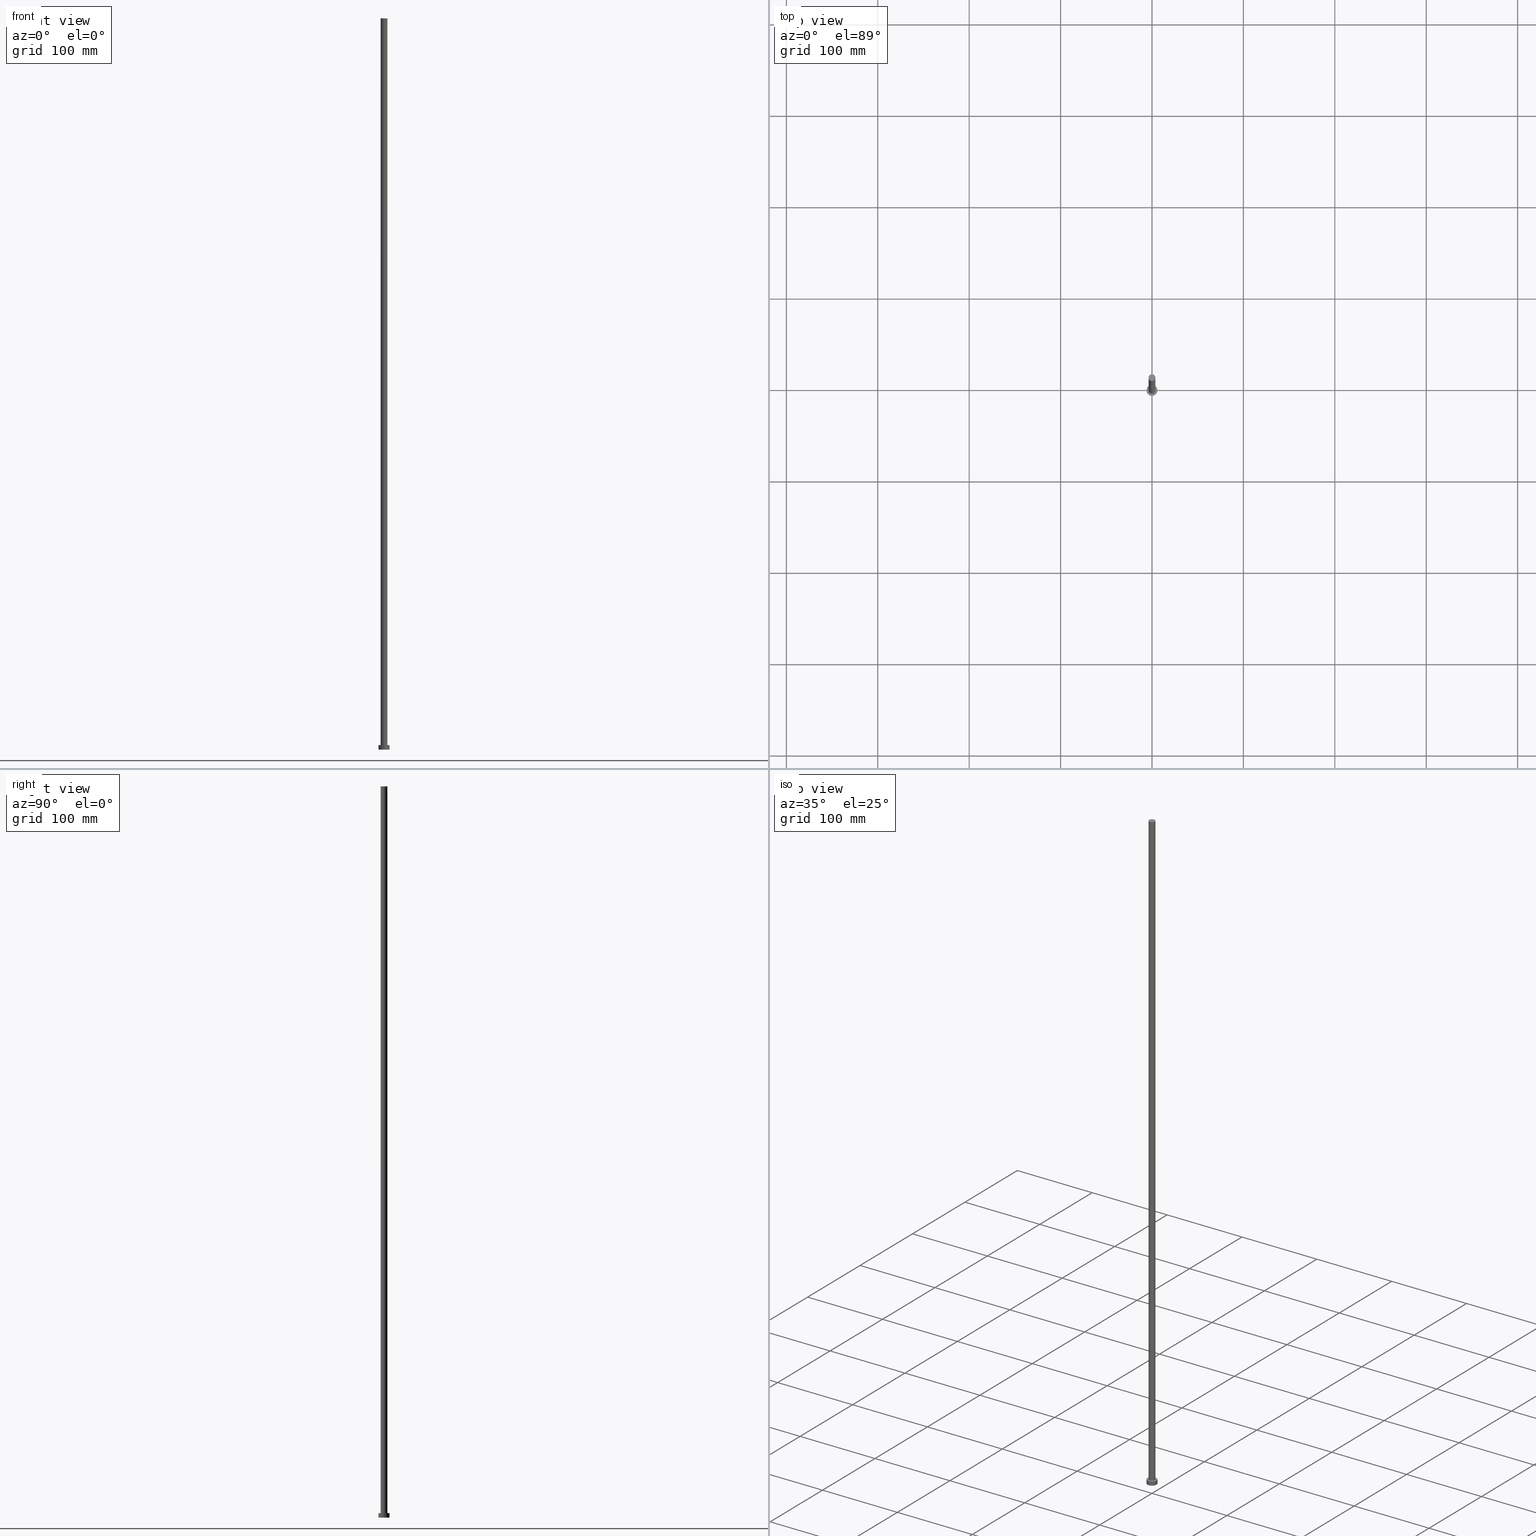
[diagram: canonical four-view strip — front | top / right | iso, engineering-drawing reading convention]
A machine part, canonical four-view strip (front | top / right | iso — engineering-drawing reading convention). The complete STEP part file that produces these views, byte-faithful:
ISO-10303-21;
HEADER;
FILE_DESCRIPTION (( 'STEP AP203' ),
    '1' );
FILE_NAME ('b522.STEP',
    '2023-02-13T14:45:40',
    ( '' ),
    ( '' ),
    'SwSTEP 2.0',
    'SolidWorks 2019',
    '' );
FILE_SCHEMA (( 'CONFIG_CONTROL_DESIGN' ));
ENDSEC;

DATA;
#1 = EDGE_CURVE ( 'NONE', #215, #52, #128, .T. ) ;
#2 = DIRECTION ( 'NONE',  ( 0.000000000000000000, 0.000000000000000000, 1.000000000000000000 ) ) ;
#3 = CALENDAR_DATE ( 2023, 13, 2 ) ;
#4 = DIRECTION ( 'NONE',  ( 0.000000000000000000, 0.000000000000000000, 1.000000000000000000 ) ) ;
#5 = CARTESIAN_POINT ( 'NONE',  ( 0.000000000000000000, 0.000000000000000000, 5.000000000000000000 ) ) ;
#6 = PERSON_AND_ORGANIZATION ( #126, #23 ) ;
#7 = AXIS2_PLACEMENT_3D ( 'NONE', #5, #58, #42 ) ;
#8 = CYLINDRICAL_SURFACE ( 'NONE', #139, 6.000000000000000888 ) ;
#9 = CC_DESIGN_PERSON_AND_ORGANIZATION_ASSIGNMENT ( #150, #129, ( #118 ) ) ;
#10 = DATE_AND_TIME ( #3, #229 ) ;
#11 = PERSON_AND_ORGANIZATION_ROLE ( 'design_owner' ) ;
#12 = PERSON_AND_ORGANIZATION ( #126, #23 ) ;
#13 = CARTESIAN_POINT ( 'NONE',  ( 3.750000000000000000, 4.592425496802573972E-16, 800.0000000000000000 ) ) ;
#14 = DIRECTION ( 'NONE',  ( -0.000000000000000000, -0.000000000000000000, -1.000000000000000000 ) ) ;
#15 = DIRECTION ( 'NONE',  ( -0.000000000000000000, -0.000000000000000000, -1.000000000000000000 ) ) ;
#16 = CIRCLE ( 'NONE', #68, 6.000000000000000888 ) ;
#17 = COORDINATED_UNIVERSAL_TIME_OFFSET ( 1, 0, .AHEAD. ) ;
#18 = DIRECTION ( 'NONE',  ( 1.000000000000000000, 0.000000000000000000, 0.000000000000000000 ) ) ;
#19 = ORIENTED_EDGE ( 'NONE', *, *, #119, .F. ) ;
#20 = CARTESIAN_POINT ( 'NONE',  ( -3.750000000000000000, 0.000000000000000000, 800.0000000000000000 ) ) ;
#21 = DIRECTION ( 'NONE',  ( -0.000000000000000000, -0.000000000000000000, -1.000000000000000000 ) ) ;
#22 = ADVANCED_FACE ( 'NONE', ( #170 ), #146, .T. ) ;
#23 = ORGANIZATION ( 'NEUR�EN�', 'NEUR�EN�', '' ) ;
#24 = EDGE_CURVE ( 'NONE', #231, #158, #207, .T. ) ;
#25 = VECTOR ( 'NONE', #21, 1000.000000000000000 ) ;
#26 = DIRECTION ( 'NONE',  ( 1.000000000000000000, 0.000000000000000000, 0.000000000000000000 ) ) ;
#27 = CALENDAR_DATE ( 2023, 13, 2 ) ;
#28 = CC_DESIGN_PERSON_AND_ORGANIZATION_ASSIGNMENT ( #247, #11, ( #143 ) ) ;
#29 = COORDINATED_UNIVERSAL_TIME_OFFSET ( 1, 0, .AHEAD. ) ;
#30 = PERSON_AND_ORGANIZATION ( #126, #23 ) ;
#31 = APPROVAL_ROLE ( '' ) ;
#32 = FACE_OUTER_BOUND ( 'NONE', #103, .T. ) ;
#33 = CIRCLE ( 'NONE', #124, 3.750000000000000000 ) ;
#34 = DIRECTION ( 'NONE',  ( -1.000000000000000000, 0.000000000000000000, 0.000000000000000000 ) ) ;
#35 = LOCAL_TIME ( 15, 45, 40.00000000000000000, #45 ) ;
#36 = APPLICATION_CONTEXT ( 'configuration controlled 3d designs of mechanical parts and assemblies' ) ;
#37 = CARTESIAN_POINT ( 'NONE',  ( 3.750000000000000000, 4.592425496802573972E-16, 800.0000000000000000 ) ) ;
#38 = DIRECTION ( 'NONE',  ( 1.000000000000000000, 0.000000000000000000, -0.000000000000000000 ) ) ;
#39 = CC_DESIGN_DATE_AND_TIME_ASSIGNMENT ( #102, #127, ( #50 ) ) ;
#40 = ORIENTED_EDGE ( 'NONE', *, *, #51, .F. ) ;
#41 = CC_DESIGN_APPROVAL ( #178, ( #50 ) ) ;
#42 = DIRECTION ( 'NONE',  ( 1.000000000000000000, 0.000000000000000000, 0.000000000000000000 ) ) ;
#43 = ADVANCED_FACE ( 'NONE', ( #32 ), #107, .T. ) ;
#44 = MECHANICAL_CONTEXT ( 'NONE', #36, 'mechanical' ) ;
#45 = COORDINATED_UNIVERSAL_TIME_OFFSET ( 1, 0, .AHEAD. ) ;
#46 = ADVANCED_FACE ( 'NONE', ( #171 ), #8, .T. ) ;
#47 = ORIENTED_EDGE ( 'NONE', *, *, #24, .F. ) ;
#48 = VERTEX_POINT ( 'NONE', #192 ) ;
#49 = ORIENTED_EDGE ( 'NONE', *, *, #181, .T. ) ;
#50 = SECURITY_CLASSIFICATION ( '', '', #63 ) ;
#51 = EDGE_CURVE ( 'NONE', #235, #215, #56, .T. ) ;
#52 = VERTEX_POINT ( 'NONE', #109 ) ;
#53 = CARTESIAN_POINT ( 'NONE',  ( -6.000000000000000888, 0.000000000000000000, 5.000000000000000000 ) ) ;
#54 = EDGE_LOOP ( 'NONE', ( #123, #19 ) ) ;
#55 = CARTESIAN_POINT ( 'NONE',  ( -6.000000000000000888, 0.000000000000000000, 5.000000000000000000 ) ) ;
#56 = CIRCLE ( 'NONE', #239, 3.750000000000000000 ) ;
#57 = DIRECTION ( 'NONE',  ( 0.000000000000000000, 0.000000000000000000, 1.000000000000000000 ) ) ;
#58 = DIRECTION ( 'NONE',  ( 0.000000000000000000, 0.000000000000000000, 1.000000000000000000 ) ) ;
#59 = EDGE_CURVE ( 'NONE', #158, #190, #153, .T. ) ;
#60 = CIRCLE ( 'NONE', #112, 6.000000000000000888 ) ;
#61 = APPROVAL_STATUS ( 'not_yet_approved' ) ;
#62 = ORIENTED_EDGE ( 'NONE', *, *, #59, .T. ) ;
#63 = SECURITY_CLASSIFICATION_LEVEL ( 'unclassified' ) ;
#64 = CARTESIAN_POINT ( 'NONE',  ( 0.000000000000000000, 0.000000000000000000, 5.000000000000000000 ) ) ;
#65 = APPLICATION_CONTEXT ( 'configuration controlled 3d designs of mechanical parts and assemblies' ) ;
#66 = AXIS2_PLACEMENT_3D ( 'NONE', #175, #212, #253 ) ;
#67 = FACE_OUTER_BOUND ( 'NONE', #194, .T. ) ;
#68 = AXIS2_PLACEMENT_3D ( 'NONE', #195, #74, #157 ) ;
#69 = ORIENTED_EDGE ( 'NONE', *, *, #24, .T. ) ;
#70 = ORIENTED_EDGE ( 'NONE', *, *, #181, .F. ) ;
#71 = ADVANCED_FACE ( 'NONE', ( #67 ), #173, .T. ) ;
#72 = ORIENTED_EDGE ( 'NONE', *, *, #206, .T. ) ;
#73 = ORIENTED_EDGE ( 'NONE', *, *, #222, .F. ) ;
#74 = DIRECTION ( 'NONE',  ( 0.000000000000000000, 0.000000000000000000, 1.000000000000000000 ) ) ;
#75 = ORIENTED_EDGE ( 'NONE', *, *, #51, .T. ) ;
#76 = DIRECTION ( 'NONE',  ( -0.000000000000000000, -0.000000000000000000, -1.000000000000000000 ) ) ;
#77 = CARTESIAN_POINT ( 'NONE',  ( 0.000000000000000000, 0.000000000000000000, 0.000000000000000000 ) ) ;
#78 =( NAMED_UNIT ( * ) SI_UNIT ( $, .STERADIAN. ) SOLID_ANGLE_UNIT ( ) );
#79 = APPROVAL_DATE_TIME ( #10, #172 ) ;
#80 = CARTESIAN_POINT ( 'NONE',  ( 0.000000000000000000, 0.000000000000000000, 5.000000000000000000 ) ) ;
#81 = ADVANCED_FACE ( 'NONE', ( #151, #230 ), #130, .T. ) ;
#82 = APPROVAL_ROLE ( '' ) ;
#83 = PERSON_AND_ORGANIZATION_ROLE ( 'creator' ) ;
#84 = APPROVAL_STATUS ( 'not_yet_approved' ) ;
#85 = AXIS2_PLACEMENT_3D ( 'NONE', #220, #76, #120 ) ;
#86 = ADVANCED_BREP_SHAPE_REPRESENTATION ( 'b522', ( #201, #106 ), #162 ) ;
#87 = DIRECTION ( 'NONE',  ( -1.000000000000000000, 0.000000000000000000, 0.000000000000000000 ) ) ;
#88 = ADVANCED_FACE ( 'NONE', ( #94 ), #236, .T. ) ;
#89 = EDGE_LOOP ( 'NONE', ( #69, #249 ) ) ;
#90 = AXIS2_PLACEMENT_3D ( 'NONE', #99, #117, #26 ) ;
#91 = ORIENTED_EDGE ( 'NONE', *, *, #131, .F. ) ;
#92 = EDGE_CURVE ( 'NONE', #231, #211, #200, .T. ) ;
#93 = CC_DESIGN_APPROVAL ( #172, ( #205 ) ) ;
#94 = FACE_OUTER_BOUND ( 'NONE', #152, .T. ) ;
#95 = CC_DESIGN_PERSON_AND_ORGANIZATION_ASSIGNMENT ( #225, #166, ( #205 ) ) ;
#96 = UNCERTAINTY_MEASURE_WITH_UNIT (LENGTH_MEASURE( 1.000000000000000082E-05 ), #198, 'distance_accuracy_value', 'NONE');
#97 = PLANE ( 'NONE',  #176 ) ;
#98 = PRODUCT_DEFINITION_SHAPE ( 'NONE', 'NONE',  #118 ) ;
#99 = CARTESIAN_POINT ( 'NONE',  ( 0.000000000000000000, 0.000000000000000000, 800.0000000000000000 ) ) ;
#100 = DATE_TIME_ROLE ( 'creation_date' ) ;
#101 =( NAMED_UNIT ( * ) PLANE_ANGLE_UNIT ( ) SI_UNIT ( $, .RADIAN. ) );
#102 = DATE_AND_TIME ( #27, #35 ) ;
#103 = EDGE_LOOP ( 'NONE', ( #73, #62, #254, #132 ) ) ;
#104 = DATE_AND_TIME ( #183, #141 ) ;
#105 = APPLICATION_PROTOCOL_DEFINITION ( 'international standard', 'config_control_design', 1994, #36 ) ;
#106 = AXIS2_PLACEMENT_3D ( 'NONE', #246, #204, #149 ) ;
#107 = CYLINDRICAL_SURFACE ( 'NONE', #248, 6.000000000000000888 ) ;
#108 = COORDINATED_UNIVERSAL_TIME_OFFSET ( 1, 0, .AHEAD. ) ;
#109 = CARTESIAN_POINT ( 'NONE',  ( 3.750000000000000000, 4.592425496802573972E-16, 5.000000000000000000 ) ) ;
#110 = ORIENTED_EDGE ( 'NONE', *, *, #92, .T. ) ;
#111 = VECTOR ( 'NONE', #168, 1000.000000000000000 ) ;
#112 = AXIS2_PLACEMENT_3D ( 'NONE', #144, #159, #197 ) ;
#113 = EDGE_LOOP ( 'NONE', ( #135, #47, #110, #233 ) ) ;
#114 = DIRECTION ( 'NONE',  ( -0.000000000000000000, -0.000000000000000000, -1.000000000000000000 ) ) ;
#115 = ORIENTED_EDGE ( 'NONE', *, *, #1, .T. ) ;
#116 = CARTESIAN_POINT ( 'NONE',  ( -6.000000000000000888, 0.000000000000000000, 0.000000000000000000 ) ) ;
#117 = DIRECTION ( 'NONE',  ( 0.000000000000000000, 0.000000000000000000, 1.000000000000000000 ) ) ;
#118 = PRODUCT_DEFINITION ( 'NEZN�M�', '', #205, #160 ) ;
#119 = EDGE_CURVE ( 'NONE', #190, #211, #199, .T. ) ;
#120 = DIRECTION ( 'NONE',  ( -1.000000000000000000, 0.000000000000000000, 0.000000000000000000 ) ) ;
#121 = LOCAL_TIME ( 15, 45, 40.00000000000000000, #108 ) ;
#122 = COORDINATED_UNIVERSAL_TIME_OFFSET ( 1, 0, .AHEAD. ) ;
#123 = ORIENTED_EDGE ( 'NONE', *, *, #161, .F. ) ;
#124 = AXIS2_PLACEMENT_3D ( 'NONE', #255, #252, #234 ) ;
#125 = APPROVAL_STATUS ( 'not_yet_approved' ) ;
#126 = PERSON ( 'NEUR�EN�', 'NEUR�EN�', 'NEUR�EN�', ('NEUR�EN�'), ('NEUR�EN�'), ('NEUR�EN�') ) ;
#127 = DATE_TIME_ROLE ( 'classification_date' ) ;
#128 = LINE ( 'NONE', #13, #111 ) ;
#129 = PERSON_AND_ORGANIZATION_ROLE ( 'creator' ) ;
#130 = PLANE ( 'NONE',  #167 ) ;
#131 = EDGE_CURVE ( 'NONE', #215, #235, #147, .T. ) ;
#132 = ORIENTED_EDGE ( 'NONE', *, *, #92, .F. ) ;
#133 = PRODUCT_RELATED_PRODUCT_CATEGORY ( 'detail', '', ( #143 ) ) ;
#134 = CARTESIAN_POINT ( 'NONE',  ( 0.000000000000000000, 0.000000000000000000, 800.0000000000000000 ) ) ;
#135 = ORIENTED_EDGE ( 'NONE', *, *, #59, .F. ) ;
#136 = CARTESIAN_POINT ( 'NONE',  ( 6.000000000000000888, 7.347880794884120722E-16, 5.000000000000000000 ) ) ;
#137 = ORIENTED_EDGE ( 'NONE', *, *, #206, .F. ) ;
#138 = CARTESIAN_POINT ( 'NONE',  ( -3.750000000000000000, 0.000000000000000000, 800.0000000000000000 ) ) ;
#139 = AXIS2_PLACEMENT_3D ( 'NONE', #80, #15, #34 ) ;
#140 = CARTESIAN_POINT ( 'NONE',  ( 0.000000000000000000, 0.000000000000000000, 5.000000000000000000 ) ) ;
#141 = LOCAL_TIME ( 15, 45, 40.00000000000000000, #29 ) ;
#142 = FACE_OUTER_BOUND ( 'NONE', #54, .T. ) ;
#143 = PRODUCT ( 'b522', 'b522', '', ( #44 ) ) ;
#144 = CARTESIAN_POINT ( 'NONE',  ( 0.000000000000000000, 0.000000000000000000, 0.000000000000000000 ) ) ;
#145 = CC_DESIGN_PERSON_AND_ORGANIZATION_ASSIGNMENT ( #244, #83, ( #205 ) ) ;
#146 = CYLINDRICAL_SURFACE ( 'NONE', #179, 3.750000000000000000 ) ;
#147 = CIRCLE ( 'NONE', #90, 3.750000000000000000 ) ;
#148 = SHAPE_DEFINITION_REPRESENTATION ( #98, #86 ) ;
#149 = DIRECTION ( 'NONE',  ( 1.000000000000000000, 0.000000000000000000, 0.000000000000000000 ) ) ;
#150 = PERSON_AND_ORGANIZATION ( #126, #23 ) ;
#151 = FACE_BOUND ( 'NONE', #251, .T. ) ;
#152 = EDGE_LOOP ( 'NONE', ( #91, #115, #217, #70 ) ) ;
#153 = LINE ( 'NONE', #136, #25 ) ;
#154 = APPROVAL_PERSON_ORGANIZATION ( #12, #237, #82 ) ;
#155 = EDGE_CURVE ( 'NONE', #52, #48, #240, .T. ) ;
#156 = ORIENTED_EDGE ( 'NONE', *, *, #1, .F. ) ;
#157 = DIRECTION ( 'NONE',  ( 1.000000000000000000, 0.000000000000000000, 0.000000000000000000 ) ) ;
#158 = VERTEX_POINT ( 'NONE', #196 ) ;
#159 = DIRECTION ( 'NONE',  ( 0.000000000000000000, 0.000000000000000000, 1.000000000000000000 ) ) ;
#160 = DESIGN_CONTEXT ( 'detailed design', #65, 'design' ) ;
#161 = EDGE_CURVE ( 'NONE', #211, #190, #60, .T. ) ;
#162 =( GEOMETRIC_REPRESENTATION_CONTEXT ( 3 ) GLOBAL_UNCERTAINTY_ASSIGNED_CONTEXT ( ( #96 ) ) GLOBAL_UNIT_ASSIGNED_CONTEXT ( ( #198, #101, #78 ) ) REPRESENTATION_CONTEXT ( 'NONE', 'WORKASPACE' ) );
#163 = DIRECTION ( 'NONE',  ( 1.000000000000000000, 0.000000000000000000, 0.000000000000000000 ) ) ;
#164 = ADVANCED_FACE ( 'NONE', ( #142 ), #97, .F. ) ;
#165 = PERSON_AND_ORGANIZATION ( #126, #23 ) ;
#166 = PERSON_AND_ORGANIZATION_ROLE ( 'design_supplier' ) ;
#167 = AXIS2_PLACEMENT_3D ( 'NONE', #140, #2, #38 ) ;
#168 = DIRECTION ( 'NONE',  ( -0.000000000000000000, -0.000000000000000000, -1.000000000000000000 ) ) ;
#169 = CC_DESIGN_SECURITY_CLASSIFICATION ( #50, ( #205 ) ) ;
#170 = FACE_OUTER_BOUND ( 'NONE', #208, .T. ) ;
#171 = FACE_OUTER_BOUND ( 'NONE', #113, .T. ) ;
#172 = APPROVAL ( #61, 'NEUR�EN�' ) ;
#173 = PLANE ( 'NONE',  #66 ) ;
#174 = CARTESIAN_POINT ( 'NONE',  ( 6.000000000000000888, 7.347880794884120722E-16, 0.000000000000000000 ) ) ;
#175 = CARTESIAN_POINT ( 'NONE',  ( 0.000000000000000000, 0.000000000000000000, 800.0000000000000000 ) ) ;
#176 = AXIS2_PLACEMENT_3D ( 'NONE', #77, #57, #218 ) ;
#177 = LINE ( 'NONE', #20, #202 ) ;
#178 = APPROVAL ( #125, 'NEUR�EN�' ) ;
#179 = AXIS2_PLACEMENT_3D ( 'NONE', #245, #203, #226 ) ;
#180 = AXIS2_PLACEMENT_3D ( 'NONE', #64, #243, #224 ) ;
#181 = EDGE_CURVE ( 'NONE', #235, #48, #177, .T. ) ;
#182 = APPLICATION_PROTOCOL_DEFINITION ( 'international standard', 'config_control_design', 1994, #65 ) ;
#183 = CALENDAR_DATE ( 2023, 13, 2 ) ;
#184 = ORIENTED_EDGE ( 'NONE', *, *, #131, .T. ) ;
#185 = CARTESIAN_POINT ( 'NONE',  ( 0.000000000000000000, 0.000000000000000000, 5.000000000000000000 ) ) ;
#186 = APPROVAL_DATE_TIME ( #228, #237 ) ;
#187 = CALENDAR_DATE ( 2023, 13, 2 ) ;
#188 = CC_DESIGN_DATE_AND_TIME_ASSIGNMENT ( #219, #100, ( #118 ) ) ;
#189 = CLOSED_SHELL ( 'NONE', ( #88, #43, #46, #81, #164, #22, #71 ) ) ;
#190 = VERTEX_POINT ( 'NONE', #174 ) ;
#191 = CC_DESIGN_APPROVAL ( #237, ( #118 ) ) ;
#192 = CARTESIAN_POINT ( 'NONE',  ( -3.750000000000000000, 0.000000000000000000, 5.000000000000000000 ) ) ;
#193 = ORIENTED_EDGE ( 'NONE', *, *, #155, .F. ) ;
#194 = EDGE_LOOP ( 'NONE', ( #75, #184 ) ) ;
#195 = CARTESIAN_POINT ( 'NONE',  ( 0.000000000000000000, 0.000000000000000000, 5.000000000000000000 ) ) ;
#196 = CARTESIAN_POINT ( 'NONE',  ( 6.000000000000000888, 7.347880794884120722E-16, 5.000000000000000000 ) ) ;
#197 = DIRECTION ( 'NONE',  ( 1.000000000000000000, 0.000000000000000000, 0.000000000000000000 ) ) ;
#198 =( LENGTH_UNIT ( ) NAMED_UNIT ( * ) SI_UNIT ( .MILLI., .METRE. ) );
#199 = CIRCLE ( 'NONE', #232, 6.000000000000000888 ) ;
#200 = LINE ( 'NONE', #53, #221 ) ;
#201 = MANIFOLD_SOLID_BREP ( 'P�idat vysunut�m3', #189 ) ;
#202 = VECTOR ( 'NONE', #114, 1000.000000000000000 ) ;
#203 = DIRECTION ( 'NONE',  ( -0.000000000000000000, -0.000000000000000000, -1.000000000000000000 ) ) ;
#204 = DIRECTION ( 'NONE',  ( 0.000000000000000000, 0.000000000000000000, 1.000000000000000000 ) ) ;
#205 = PRODUCT_DEFINITION_FORMATION_WITH_SPECIFIED_SOURCE ( 'LIBOVOLN�', '', #143, .NOT_KNOWN. ) ;
#206 = EDGE_CURVE ( 'NONE', #48, #52, #33, .T. ) ;
#207 = CIRCLE ( 'NONE', #180, 6.000000000000000888 ) ;
#208 = EDGE_LOOP ( 'NONE', ( #156, #40, #49, #72 ) ) ;
#209 = APPROVAL_PERSON_ORGANIZATION ( #6, #172, #223 ) ;
#210 = DIRECTION ( 'NONE',  ( 0.000000000000000000, 0.000000000000000000, 1.000000000000000000 ) ) ;
#211 = VERTEX_POINT ( 'NONE', #116 ) ;
#212 = DIRECTION ( 'NONE',  ( 0.000000000000000000, 0.000000000000000000, 1.000000000000000000 ) ) ;
#213 = CALENDAR_DATE ( 2023, 13, 2 ) ;
#214 = CARTESIAN_POINT ( 'NONE',  ( 0.000000000000000000, 0.000000000000000000, 0.000000000000000000 ) ) ;
#215 = VERTEX_POINT ( 'NONE', #37 ) ;
#216 = APPROVAL_PERSON_ORGANIZATION ( #30, #178, #31 ) ;
#217 = ORIENTED_EDGE ( 'NONE', *, *, #155, .T. ) ;
#218 = DIRECTION ( 'NONE',  ( 1.000000000000000000, 0.000000000000000000, -0.000000000000000000 ) ) ;
#219 = DATE_AND_TIME ( #213, #250 ) ;
#220 = CARTESIAN_POINT ( 'NONE',  ( 0.000000000000000000, 0.000000000000000000, 800.0000000000000000 ) ) ;
#221 = VECTOR ( 'NONE', #238, 1000.000000000000000 ) ;
#222 = EDGE_CURVE ( 'NONE', #158, #231, #16, .T. ) ;
#223 = APPROVAL_ROLE ( '' ) ;
#224 = DIRECTION ( 'NONE',  ( 1.000000000000000000, 0.000000000000000000, 0.000000000000000000 ) ) ;
#225 = PERSON_AND_ORGANIZATION ( #126, #23 ) ;
#226 = DIRECTION ( 'NONE',  ( -1.000000000000000000, 0.000000000000000000, 0.000000000000000000 ) ) ;
#227 = PERSON_AND_ORGANIZATION_ROLE ( 'classification_officer' ) ;
#228 = DATE_AND_TIME ( #187, #121 ) ;
#229 = LOCAL_TIME ( 15, 45, 40.00000000000000000, #122 ) ;
#230 = FACE_OUTER_BOUND ( 'NONE', #89, .T. ) ;
#231 = VERTEX_POINT ( 'NONE', #55 ) ;
#232 = AXIS2_PLACEMENT_3D ( 'NONE', #214, #4, #163 ) ;
#233 = ORIENTED_EDGE ( 'NONE', *, *, #161, .T. ) ;
#234 = DIRECTION ( 'NONE',  ( 1.000000000000000000, 0.000000000000000000, 0.000000000000000000 ) ) ;
#235 = VERTEX_POINT ( 'NONE', #138 ) ;
#236 = CYLINDRICAL_SURFACE ( 'NONE', #85, 3.750000000000000000 ) ;
#237 = APPROVAL ( #84, 'NEUR�EN�' ) ;
#238 = DIRECTION ( 'NONE',  ( -0.000000000000000000, -0.000000000000000000, -1.000000000000000000 ) ) ;
#239 = AXIS2_PLACEMENT_3D ( 'NONE', #134, #210, #18 ) ;
#240 = CIRCLE ( 'NONE', #7, 3.750000000000000000 ) ;
#241 = APPROVAL_DATE_TIME ( #104, #178 ) ;
#242 = CC_DESIGN_PERSON_AND_ORGANIZATION_ASSIGNMENT ( #165, #227, ( #50 ) ) ;
#243 = DIRECTION ( 'NONE',  ( 0.000000000000000000, 0.000000000000000000, 1.000000000000000000 ) ) ;
#244 = PERSON_AND_ORGANIZATION ( #126, #23 ) ;
#245 = CARTESIAN_POINT ( 'NONE',  ( 0.000000000000000000, 0.000000000000000000, 800.0000000000000000 ) ) ;
#246 = CARTESIAN_POINT ( 'NONE',  ( 0.000000000000000000, 0.000000000000000000, 0.000000000000000000 ) ) ;
#247 = PERSON_AND_ORGANIZATION ( #126, #23 ) ;
#248 = AXIS2_PLACEMENT_3D ( 'NONE', #185, #14, #87 ) ;
#249 = ORIENTED_EDGE ( 'NONE', *, *, #222, .T. ) ;
#250 = LOCAL_TIME ( 15, 45, 40.00000000000000000, #17 ) ;
#251 = EDGE_LOOP ( 'NONE', ( #137, #193 ) ) ;
#252 = DIRECTION ( 'NONE',  ( 0.000000000000000000, 0.000000000000000000, 1.000000000000000000 ) ) ;
#253 = DIRECTION ( 'NONE',  ( 1.000000000000000000, 0.000000000000000000, -0.000000000000000000 ) ) ;
#254 = ORIENTED_EDGE ( 'NONE', *, *, #119, .T. ) ;
#255 = CARTESIAN_POINT ( 'NONE',  ( 0.000000000000000000, 0.000000000000000000, 5.000000000000000000 ) ) ;
ENDSEC;
END-ISO-10303-21;
